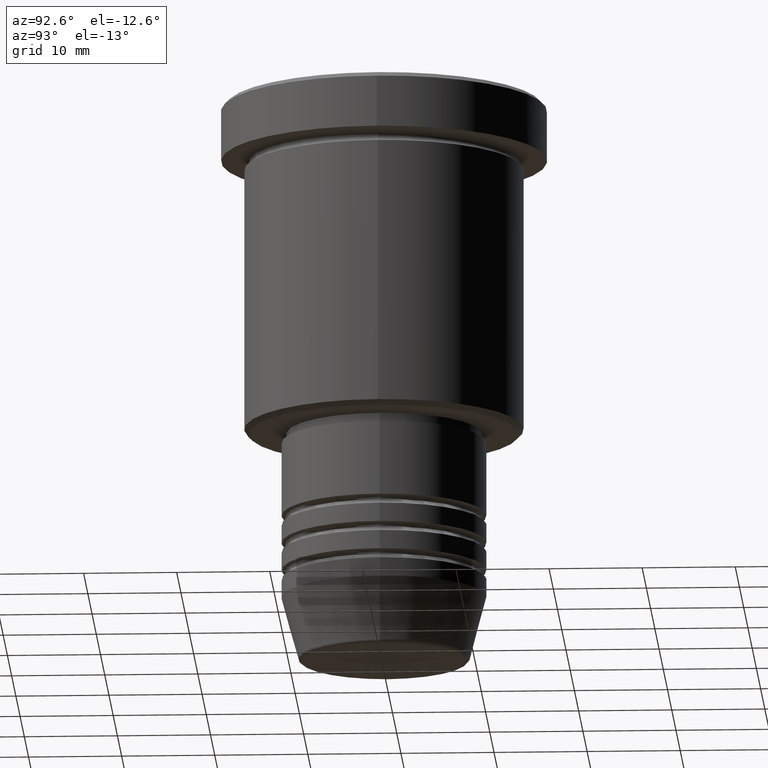
[diagram: clean part render]
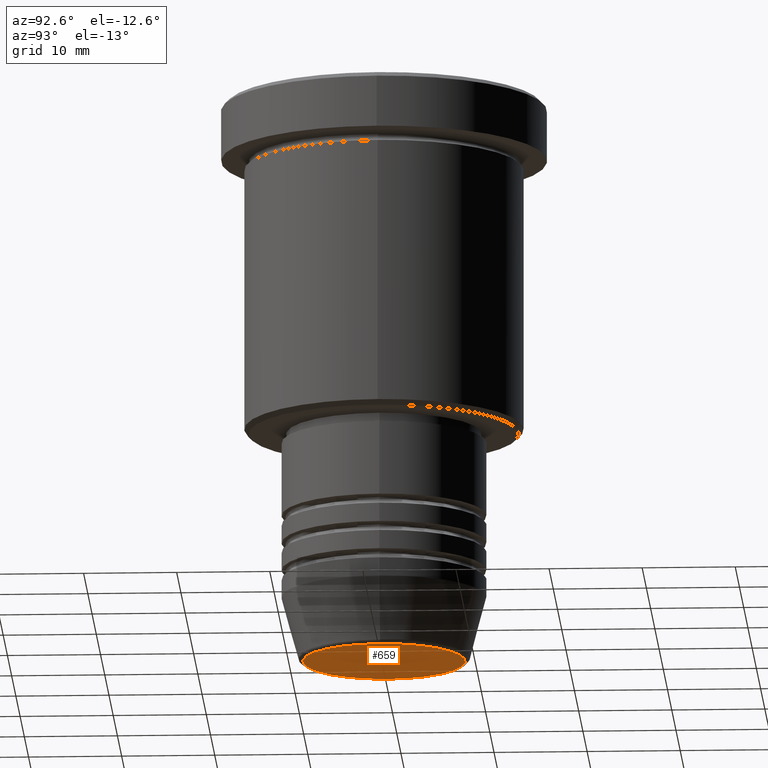
[diagram: same view with one face highlighted and labeled with its STEP entity id]
A machine part, auxiliary view. The second image highlights one B-rep face of the part: STEP entity #659.
In plain terms, the highlighted planar face has unit normal (0, -0, 1).
Its self-contained STEP definition (entity closure, byte-faithful):
#79 = AXIS2_PLACEMENT_3D ( 'NONE', #432, #1150, #516 ) ;
#161 = AXIS2_PLACEMENT_3D ( 'NONE', #882, #610, #343 ) ;
#190 = ORIENTED_EDGE ( 'NONE', *, *, #723, .T. ) ;
#235 = ORIENTED_EDGE ( 'NONE', *, *, #665, .T. ) ;
#251 = CARTESIAN_POINT ( 'NONE',  ( 0.000000000000000000, 0.000000000000000000, -60.99999999999999289 ) ) ;
#343 = DIRECTION ( 'NONE',  ( 1.000000000000000000, 0.000000000000000000, 0.000000000000000000 ) ) ;
#432 = CARTESIAN_POINT ( 'NONE',  ( 0.000000000000000000, 0.000000000000000000, -60.99999999999999289 ) ) ;
#473 = CARTESIAN_POINT ( 'NONE',  ( 8.740692158992654726, 0.000000000000000000, -60.99999999999999289 ) ) ;
#509 = CIRCLE ( 'NONE', #718, 8.740692158992654726 ) ;
#516 = DIRECTION ( 'NONE',  ( 1.000000000000000000, 0.000000000000000000, 0.000000000000000000 ) ) ;
#528 = CARTESIAN_POINT ( 'NONE',  ( -8.740692158992654726, 1.099999016768739259E-15, -60.99999999999999289 ) ) ;
#537 = DIRECTION ( 'NONE',  ( 1.000000000000000000, 0.000000000000000000, 0.000000000000000000 ) ) ;
#597 = FACE_OUTER_BOUND ( 'NONE', #839, .T. ) ;
#610 = DIRECTION ( 'NONE',  ( 0.000000000000000000, 0.000000000000000000, -1.000000000000000000 ) ) ;
#659 = ADVANCED_FACE ( 'NONE', ( #597 ), #958, .F. ) ;
#665 = EDGE_CURVE ( 'NONE', #1041, #759, #893, .T. ) ;
#718 = AXIS2_PLACEMENT_3D ( 'NONE', #251, #894, #537 ) ;
#723 = EDGE_CURVE ( 'NONE', #759, #1041, #509, .T. ) ;
#759 = VERTEX_POINT ( 'NONE', #473 ) ;
#839 = EDGE_LOOP ( 'NONE', ( #190, #235 ) ) ;
#882 = CARTESIAN_POINT ( 'NONE',  ( 0.000000000000000000, 0.000000000000000000, -60.99999999999999289 ) ) ;
#893 = CIRCLE ( 'NONE', #161, 8.740692158992654726 ) ;
#894 = DIRECTION ( 'NONE',  ( 0.000000000000000000, 0.000000000000000000, -1.000000000000000000 ) ) ;
#958 = PLANE ( 'NONE',  #79 ) ;
#1041 = VERTEX_POINT ( 'NONE', #528 ) ;
#1150 = DIRECTION ( 'NONE',  ( 0.000000000000000000, -0.000000000000000000, 1.000000000000000000 ) ) ;